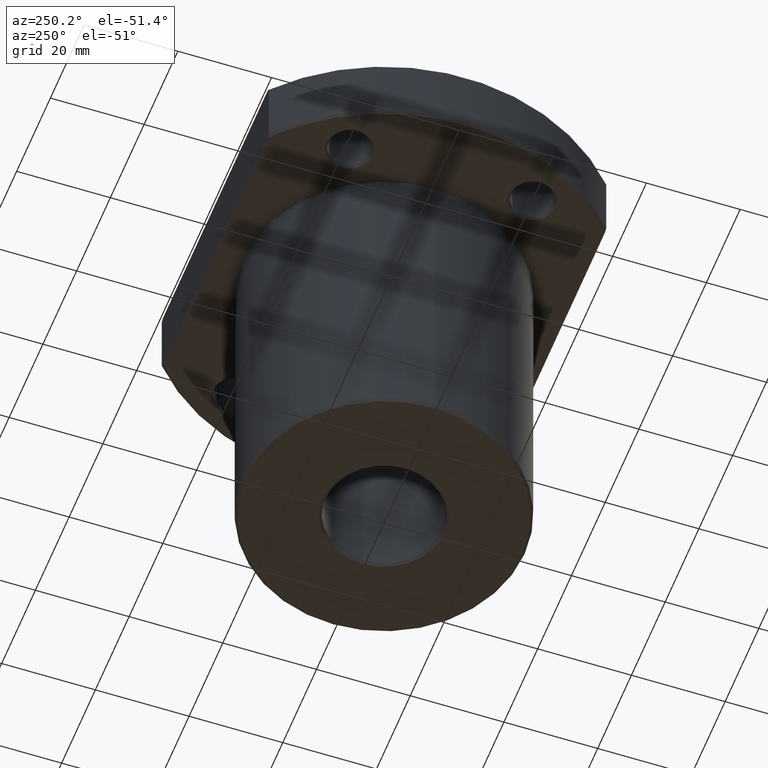
[diagram: clean part render]
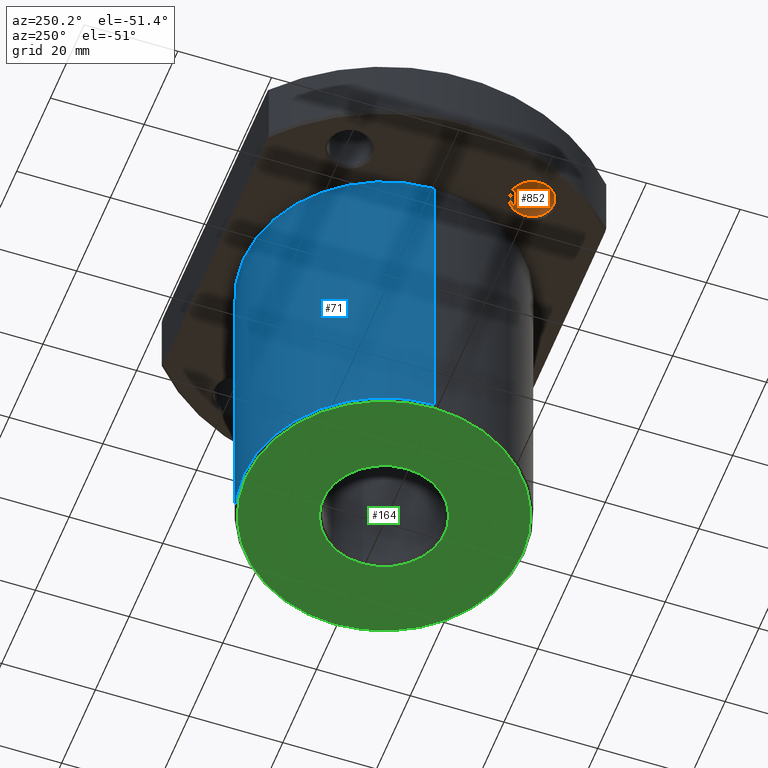
[diagram: same view with three faces highlighted in distinct colors, each labeled with its STEP entity id]
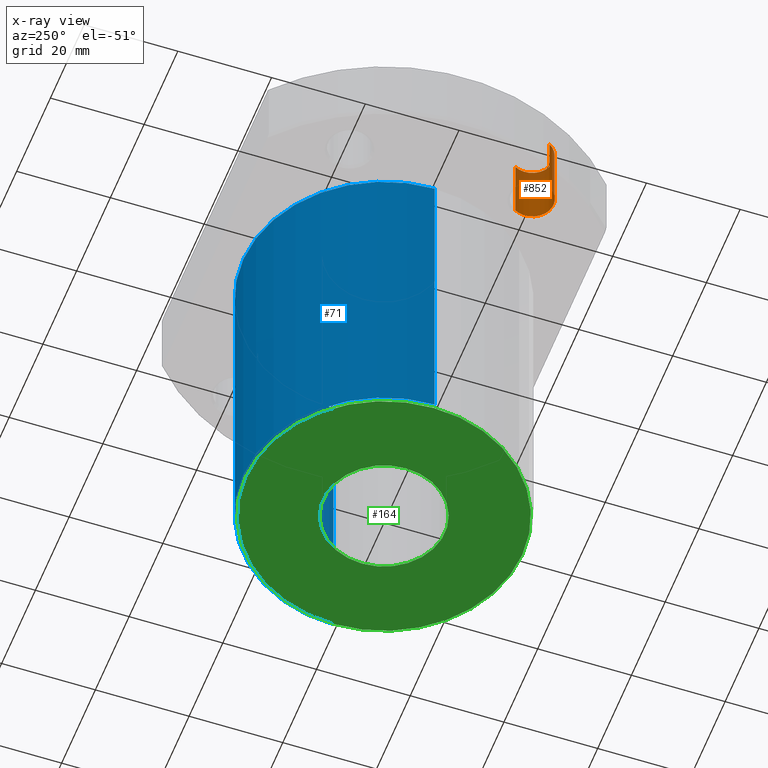
[diagram: x-ray of the same camera — body ghosted, the three highlighted faces saturated]
A machine part, auxiliary view with three faces highlighted in distinct colors.
The next image is the same camera in x-ray (body ghosted, the three faces saturated) — at least one of them is partly hidden behind the body in this view.
Their STEP definitions:

[orange] entity #852 — the highlighted cylindrical surface (edge-blend (fillet) strip) has radius 4.5 mm, axis along (0, 0, 1).
#776=AXIS2_PLACEMENT_3D('Circle Axis2P3D',#774,#775,$) ;
#825=AXIS2_PLACEMENT_3D('Cylinder Axis2P3D',#822,#823,#824) ;
#829=AXIS2_PLACEMENT_3D('Circle Axis2P3D',#827,#828,$) ;
#771=CARTESIAN_POINT('Vertex',(-37.6721050646,-21.75,70.5)) ;
#774=CARTESIAN_POINT('Axis2P3D Location',(-33.7749907476,-19.5,70.5)) ;
#778=CARTESIAN_POINT('Vertex',(-29.8778764306,-17.25,70.5)) ;
#822=CARTESIAN_POINT('Axis2P3D Location',(-33.7749907476,-19.5,77.5)) ;
#827=CARTESIAN_POINT('Axis2P3D Location',(-33.7749907476,-19.5,84.5)) ;
#831=CARTESIAN_POINT('Vertex',(-37.6721050646,-21.75,84.5)) ;
#833=CARTESIAN_POINT('Vertex',(-29.8778764306,-17.25,84.5)) ;
#836=CARTESIAN_POINT('Line Origine',(-29.8778764306,-17.25,77.5)) ;
#841=CARTESIAN_POINT('Line Origine',(-37.6721050646,-21.75,77.5)) ;
#775=DIRECTION('Axis2P3D Direction',(-8.50988942384E-015,1.88863059382E-014,1.)) ;
#823=DIRECTION('Axis2P3D Direction',(0.,0.,1.)) ;
#824=DIRECTION('Axis2P3D XDirection',(0.866025403784,0.5,0.)) ;
#828=DIRECTION('Axis2P3D Direction',(0.,0.,1.)) ;
#837=DIRECTION('Vector Direction',(0.,0.,1.)) ;
#842=DIRECTION('Vector Direction',(0.,0.,1.)) ;
#838=VECTOR('Line Direction',#837,1.) ;
#843=VECTOR('Line Direction',#842,1.) ;
#847=ORIENTED_EDGE('',*,*,#835,.T.) ;
#848=ORIENTED_EDGE('',*,*,#840,.F.) ;
#849=ORIENTED_EDGE('',*,*,#780,.F.) ;
#850=ORIENTED_EDGE('',*,*,#845,.T.) ;
#852=ADVANCED_FACE('',(#851),#826,.F.) ;
#777=CIRCLE('generated circle',#776,4.5) ;
#830=CIRCLE('generated circle',#829,4.5) ;
#826=CYLINDRICAL_SURFACE('generated cylinder',#825,4.5) ;
#780=EDGE_CURVE('',#772,#779,#777,.T.) ;
#835=EDGE_CURVE('',#832,#834,#830,.T.) ;
#840=EDGE_CURVE('',#779,#834,#839,.T.) ;
#845=EDGE_CURVE('',#772,#832,#844,.T.) ;
#846=EDGE_LOOP('',(#847,#848,#849,#850)) ;
#851=FACE_OUTER_BOUND('',#846,.T.) ;
#839=LINE('Line',#836,#838) ;
#844=LINE('Line',#841,#843) ;
#772=VERTEX_POINT('',#771) ;
#779=VERTEX_POINT('',#778) ;
#832=VERTEX_POINT('',#831) ;
#834=VERTEX_POINT('',#833) ;

[blue] entity #71 — the highlighted cylindrical surface (partial cylindrical patch) has radius 30 mm, axis along (0, 0, 1).
#35=AXIS2_PLACEMENT_3D('Cylinder Axis2P3D',#32,#33,#34) ;
#48=AXIS2_PLACEMENT_3D('Circle Axis2P3D',#46,#47,$) ;
#62=AXIS2_PLACEMENT_3D('Circle Axis2P3D',#60,#61,$) ;
#32=CARTESIAN_POINT('Axis2P3D Location',(0.,0.,35.)) ;
#37=CARTESIAN_POINT('Line Origine',(-30.,1.6996495357E-014,35.)) ;
#41=CARTESIAN_POINT('Vertex',(-30.,1.6996495357E-014,0.5)) ;
#43=CARTESIAN_POINT('Vertex',(-30.,1.6996495357E-014,70.)) ;
#46=CARTESIAN_POINT('Axis2P3D Location',(0.,0.,70.)) ;
#50=CARTESIAN_POINT('Vertex',(30.,0.,70.)) ;
#53=CARTESIAN_POINT('Line Origine',(30.,0.,35.)) ;
#57=CARTESIAN_POINT('Vertex',(30.,-3.39929907139E-014,0.5)) ;
#60=CARTESIAN_POINT('Axis2P3D Location',(0.,0.,0.5)) ;
#33=DIRECTION('Axis2P3D Direction',(0.,0.,1.)) ;
#34=DIRECTION('Axis2P3D XDirection',(1.,0.,0.)) ;
#38=DIRECTION('Vector Direction',(0.,0.,1.)) ;
#47=DIRECTION('Axis2P3D Direction',(0.,0.,1.)) ;
#54=DIRECTION('Vector Direction',(0.,0.,1.)) ;
#61=DIRECTION('Axis2P3D Direction',(0.,0.,1.)) ;
#39=VECTOR('Line Direction',#38,1.) ;
#55=VECTOR('Line Direction',#54,1.) ;
#66=ORIENTED_EDGE('',*,*,#45,.T.) ;
#67=ORIENTED_EDGE('',*,*,#52,.F.) ;
#68=ORIENTED_EDGE('',*,*,#59,.F.) ;
#69=ORIENTED_EDGE('',*,*,#64,.T.) ;
#71=ADVANCED_FACE('',(#70),#36,.T.) ;
#49=CIRCLE('generated circle',#48,30.) ;
#63=CIRCLE('generated circle',#62,30.) ;
#36=CYLINDRICAL_SURFACE('generated cylinder',#35,30.) ;
#45=EDGE_CURVE('',#42,#44,#40,.T.) ;
#52=EDGE_CURVE('',#51,#44,#49,.T.) ;
#59=EDGE_CURVE('',#58,#51,#56,.T.) ;
#64=EDGE_CURVE('',#58,#42,#63,.T.) ;
#65=EDGE_LOOP('',(#66,#67,#68,#69)) ;
#70=FACE_OUTER_BOUND('',#65,.T.) ;
#40=LINE('Line',#37,#39) ;
#56=LINE('Line',#53,#55) ;
#42=VERTEX_POINT('',#41) ;
#44=VERTEX_POINT('',#43) ;
#51=VERTEX_POINT('',#50) ;
#58=VERTEX_POINT('',#57) ;

[green] entity #164 — the highlighted planar face has unit normal (0, 0, 1).
#103=AXIS2_PLACEMENT_3D('Circle Axis2P3D',#101,#102,$) ;
#127=AXIS2_PLACEMENT_3D('Circle Axis2P3D',#125,#126,$) ;
#140=AXIS2_PLACEMENT_3D('Plane Axis2P3D',#137,#138,#139) ;
#148=AXIS2_PLACEMENT_3D('Circle Axis2P3D',#146,#147,$) ;
#157=AXIS2_PLACEMENT_3D('Circle Axis2P3D',#155,#156,$) ;
#98=CARTESIAN_POINT('Vertex',(29.5,-6.41778568223E-015,0.)) ;
#101=CARTESIAN_POINT('Axis2P3D Location',(1.33670224216E-015,-7.1054273576E-015,-2.09610107049E-013)) ;
#105=CARTESIAN_POINT('Vertex',(-29.5,8.14666918968E-008,0.)) ;
#125=CARTESIAN_POINT('Axis2P3D Location',(8.88178419698E-016,4.2914033244E-027,3.01980662698E-013)) ;
#137=CARTESIAN_POINT('Axis2P3D Location',(0.,0.,0.)) ;
#146=CARTESIAN_POINT('Axis2P3D Location',(0.,1.55431223448E-015,0.)) ;
#150=CARTESIAN_POINT('Vertex',(-13.,1.17280859284E-007,0.)) ;
#152=CARTESIAN_POINT('Vertex',(13.,9.91665517064E-015,0.)) ;
#155=CARTESIAN_POINT('Axis2P3D Location',(3.5527136788E-015,1.11022302463E-015,0.)) ;
#102=DIRECTION('Axis2P3D Direction',(-8.70135148874E-031,1.42108547152E-014,1.)) ;
#126=DIRECTION('Axis2P3D Direction',(2.14421699506E-015,1.24672746188E-014,1.)) ;
#138=DIRECTION('Axis2P3D Direction',(0.,0.,1.)) ;
#139=DIRECTION('Axis2P3D XDirection',(1.,0.,0.)) ;
#147=DIRECTION('Axis2P3D Direction',(0.,0.,1.)) ;
#156=DIRECTION('Axis2P3D Direction',(0.,0.,1.)) ;
#143=ORIENTED_EDGE('',*,*,#129,.F.) ;
#144=ORIENTED_EDGE('',*,*,#107,.F.) ;
#161=ORIENTED_EDGE('',*,*,#154,.T.) ;
#162=ORIENTED_EDGE('',*,*,#159,.T.) ;
#163=FACE_BOUND('',#160,.T.) ;
#164=ADVANCED_FACE('',(#145,#163),#141,.F.) ;
#104=CIRCLE('generated circle',#103,29.5) ;
#128=CIRCLE('generated circle',#127,29.5) ;
#149=CIRCLE('generated circle',#148,13.) ;
#158=CIRCLE('generated circle',#157,13.) ;
#107=EDGE_CURVE('',#99,#106,#104,.T.) ;
#129=EDGE_CURVE('',#106,#99,#128,.T.) ;
#154=EDGE_CURVE('',#151,#153,#149,.T.) ;
#159=EDGE_CURVE('',#153,#151,#158,.T.) ;
#142=EDGE_LOOP('',(#143,#144)) ;
#160=EDGE_LOOP('',(#161,#162)) ;
#145=FACE_OUTER_BOUND('',#142,.T.) ;
#141=PLANE('Plane',#140) ;
#99=VERTEX_POINT('',#98) ;
#106=VERTEX_POINT('',#105) ;
#151=VERTEX_POINT('',#150) ;
#153=VERTEX_POINT('',#152) ;